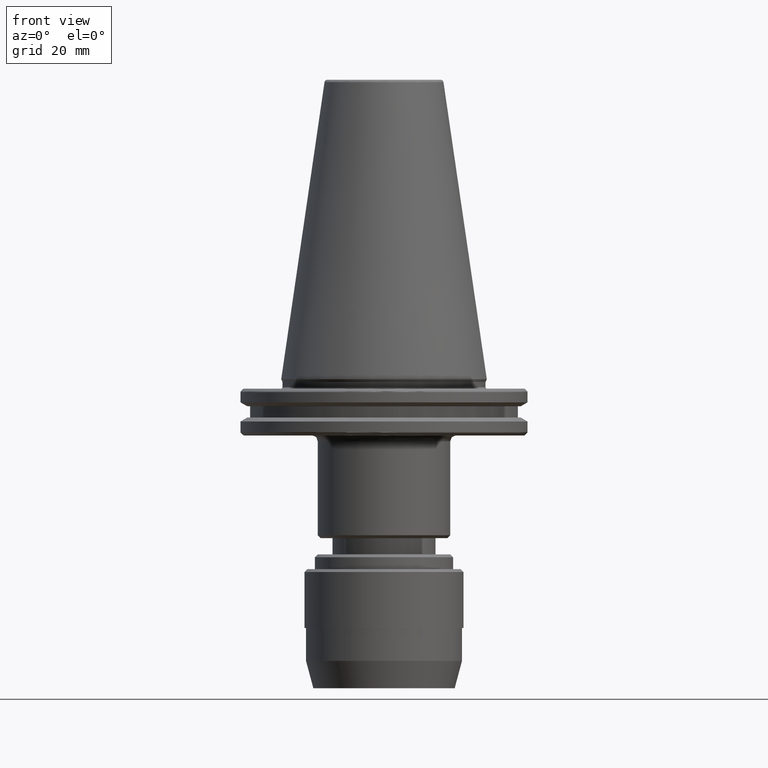
[diagram: clean part render]
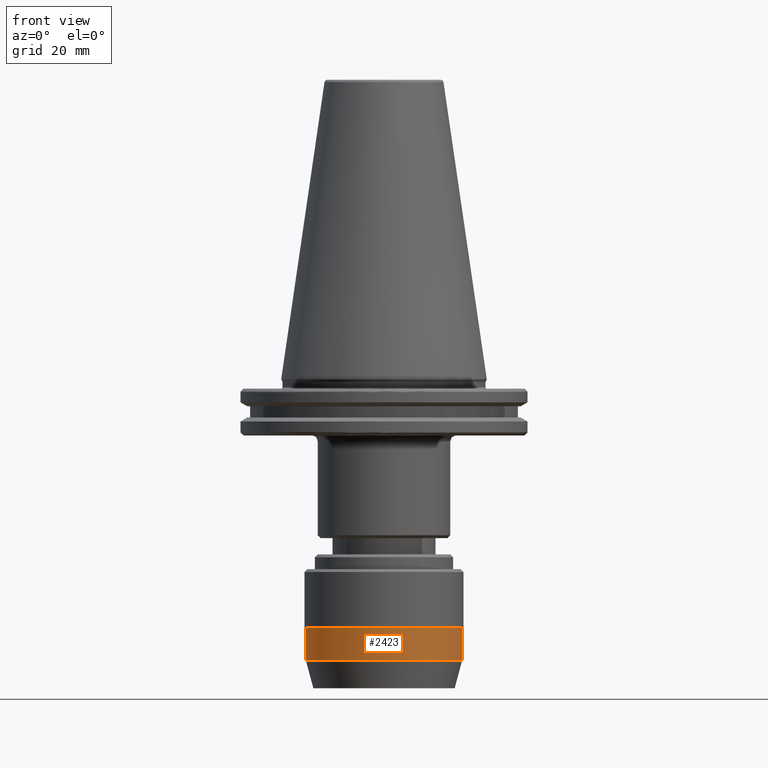
[diagram: same view with one face highlighted and labeled with its STEP entity id]
A machine part, front view. The second image highlights one B-rep face of the part: STEP entity #2423.
In plain terms, the highlighted cylindrical surface (partial cylindrical patch) has radius 26.5 mm, axis along (0, 0, 1).
Its self-contained STEP definition (entity closure, byte-faithful):
#216 = CARTESIAN_POINT ( 'NONE',  ( -26.50000000000000000, 3.245314017740485800E-015, -84.49999999999998600 ) ) ;
#241 = VERTEX_POINT ( 'NONE', #216 ) ;
#308 = DIRECTION ( 'NONE',  ( 1.000000000000000000, 0.0000000000000000000, 0.0000000000000000000 ) ) ;
#338 = CARTESIAN_POINT ( 'NONE',  ( 0.0000000000000000000, 0.0000000000000000000, 0.0000000000000000000 ) ) ;
#348 = EDGE_CURVE ( 'NONE', #241, #2397, #1543, .T. ) ;
#353 = DIRECTION ( 'NONE',  ( 0.0000000000000000000, 0.0000000000000000000, 1.000000000000000000 ) ) ;
#407 = CARTESIAN_POINT ( 'NONE',  ( 26.50000000000000000, 0.0000000000000000000, -84.49999999999998600 ) ) ;
#418 = AXIS2_PLACEMENT_3D ( 'NONE', #538, #535, #531 ) ;
#429 = EDGE_LOOP ( 'NONE', ( #1074, #1899, #2798, #1610 ) ) ;
#509 = VERTEX_POINT ( 'NONE', #2476 ) ;
#531 = DIRECTION ( 'NONE',  ( 1.000000000000000000, 0.0000000000000000000, 0.0000000000000000000 ) ) ;
#535 = DIRECTION ( 'NONE',  ( 0.0000000000000000000, 0.0000000000000000000, 1.000000000000000000 ) ) ;
#538 = CARTESIAN_POINT ( 'NONE',  ( 0.0000000000000000000, 0.0000000000000000000, -95.66987298107758900 ) ) ;
#682 = EDGE_CURVE ( 'NONE', #509, #2397, #1850, .T. ) ;
#912 = DIRECTION ( 'NONE',  ( 0.0000000000000000000, 0.0000000000000000000, 1.000000000000000000 ) ) ;
#946 = CARTESIAN_POINT ( 'NONE',  ( -26.50000000000000000, 3.245314017740485800E-015, 0.0000000000000000000 ) ) ;
#1074 = ORIENTED_EDGE ( 'NONE', *, *, #2106, .F. ) ;
#1543 = CIRCLE ( 'NONE', #2755, 26.50000000000000000 ) ;
#1610 = ORIENTED_EDGE ( 'NONE', *, *, #348, .F. ) ;
#1719 = CARTESIAN_POINT ( 'NONE',  ( 26.50000000000000000, 0.0000000000000000000, 0.0000000000000000000 ) ) ;
#1736 = DIRECTION ( 'NONE',  ( 0.0000000000000000000, 0.0000000000000000000, 1.000000000000000000 ) ) ;
#1782 = VERTEX_POINT ( 'NONE', #2888 ) ;
#1850 = LINE ( 'NONE', #1719, #1854 ) ;
#1854 = VECTOR ( 'NONE', #1736, 1000.000000000000000 ) ;
#1899 = ORIENTED_EDGE ( 'NONE', *, *, #2266, .T. ) ;
#2092 = AXIS2_PLACEMENT_3D ( 'NONE', #338, #353, #308 ) ;
#2106 = EDGE_CURVE ( 'NONE', #1782, #241, #3388, .T. ) ;
#2216 = DIRECTION ( 'NONE',  ( 1.000000000000000000, 0.0000000000000000000, 0.0000000000000000000 ) ) ;
#2228 = CIRCLE ( 'NONE', #418, 26.50000000000000000 ) ;
#2266 = EDGE_CURVE ( 'NONE', #1782, #509, #2228, .T. ) ;
#2368 = FACE_OUTER_BOUND ( 'NONE', #429, .T. ) ;
#2391 = CYLINDRICAL_SURFACE ( 'NONE', #2092, 26.50000000000000000 ) ;
#2397 = VERTEX_POINT ( 'NONE', #407 ) ;
#2423 = ADVANCED_FACE ( 'NONE', ( #2368 ), #2391, .T. ) ;
#2476 = CARTESIAN_POINT ( 'NONE',  ( 26.50000000000000000, 0.0000000000000000000, -95.66987298107758900 ) ) ;
#2755 = AXIS2_PLACEMENT_3D ( 'NONE', #3334, #2989, #2216 ) ;
#2798 = ORIENTED_EDGE ( 'NONE', *, *, #682, .T. ) ;
#2888 = CARTESIAN_POINT ( 'NONE',  ( -26.50000000000000000, 3.245314017740485800E-015, -95.66987298107758900 ) ) ;
#2989 = DIRECTION ( 'NONE',  ( 0.0000000000000000000, 0.0000000000000000000, 1.000000000000000000 ) ) ;
#3334 = CARTESIAN_POINT ( 'NONE',  ( 0.0000000000000000000, 0.0000000000000000000, -84.49999999999998600 ) ) ;
#3388 = LINE ( 'NONE', #946, #3396 ) ;
#3396 = VECTOR ( 'NONE', #912, 1000.000000000000000 ) ;